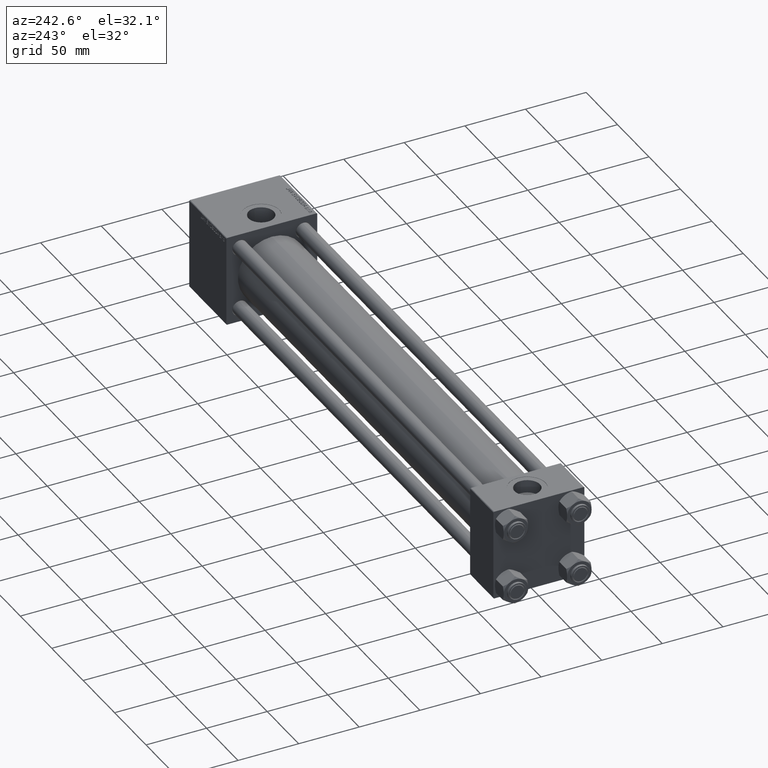
[diagram: clean part render]
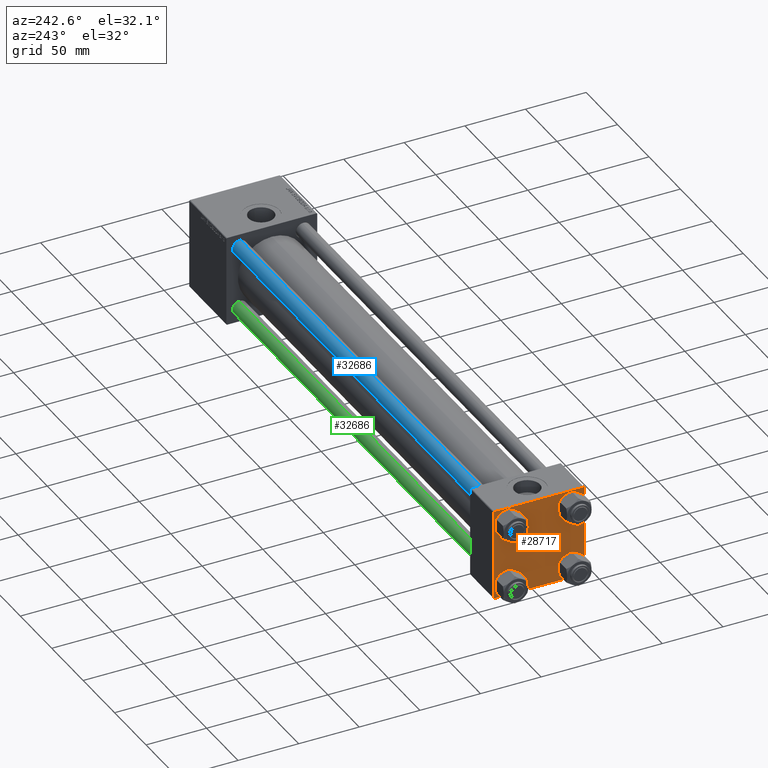
[diagram: same view with three faces highlighted in distinct colors, each labeled with its STEP entity id]
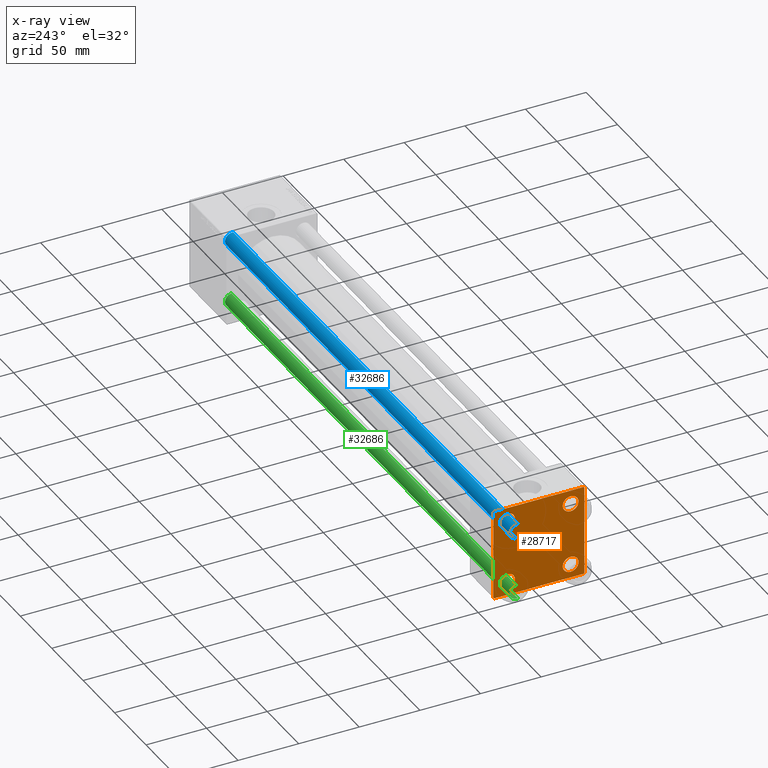
[diagram: x-ray of the same camera — body ghosted, the three highlighted faces saturated]
A machine part, auxiliary view with three faces highlighted in distinct colors.
The next image is the same camera in x-ray (body ghosted, the three faces saturated) — at least one of them is partly hidden behind the body in this view.
Their STEP definitions:

[orange] entity #28717 — the highlighted planar face has unit normal (-1, 0, 0).
#230 = CARTESIAN_POINT ( 'NONE',  ( 0.000000000000000000, 26.14999999999999858, 32.65000000000002700 ) ) ;
#609 = VECTOR ( 'NONE', #2418, 1000.000000000000000 ) ;
#1138 = CARTESIAN_POINT ( 'NONE',  ( 0.000000000000000000, -37.24999999999975842, -37.25000000000027001 ) ) ;
#2242 = CARTESIAN_POINT ( 'NONE',  ( 0.000000000000000000, 36.99999999999999289, 37.50000000000000000 ) ) ;
#2275 = DIRECTION ( 'NONE',  ( -0.000000000000000000, 0.7071067811865474617, 0.7071067811865474617 ) ) ;
#2418 = DIRECTION ( 'NONE',  ( 0.000000000000000000, 0.000000000000000000, -1.000000000000000000 ) ) ;
#2695 = VERTEX_POINT ( 'NONE', #26006 ) ;
#2727 = CARTESIAN_POINT ( 'NONE',  ( 0.000000000000000000, -26.14999999999999147, -32.65000000000002700 ) ) ;
#2827 = EDGE_LOOP ( 'NONE', ( #47886, #30783 ) ) ;
#2916 = VECTOR ( 'NONE', #2275, 1000.000000000000114 ) ;
#3047 = AXIS2_PLACEMENT_3D ( 'NONE', #18159, #25791, #22466 ) ;
#3140 = EDGE_LOOP ( 'NONE', ( #49891, #39124, #27170, #49041, #5658, #42458, #9182, #16251 ) ) ;
#3407 = FACE_BOUND ( 'NONE', #18278, .T. ) ;
#3740 = EDGE_CURVE ( 'NONE', #9069, #47236, #15443, .T. ) ;
#4159 = DIRECTION ( 'NONE',  ( 0.000000000000000000, 0.000000000000000000, 1.000000000000000000 ) ) ;
#4335 = DIRECTION ( 'NONE',  ( 0.000000000000000000, -1.000000000000000000, -9.251858538542971581E-17 ) ) ;
#4529 = DIRECTION ( 'NONE',  ( 0.000000000000000000, 0.000000000000000000, 1.000000000000000000 ) ) ;
#4978 = VERTEX_POINT ( 'NONE', #43006 ) ;
#4986 = DIRECTION ( 'NONE',  ( 1.000000000000000000, -0.000000000000000000, 0.000000000000000000 ) ) ;
#5388 = VECTOR ( 'NONE', #4335, 1000.000000000000000 ) ;
#5536 = DIRECTION ( 'NONE',  ( 1.000000000000000000, -0.000000000000000000, 0.000000000000000000 ) ) ;
#5575 = EDGE_CURVE ( 'NONE', #26894, #17867, #35426, .T. ) ;
#5658 = ORIENTED_EDGE ( 'NONE', *, *, #40076, .F. ) ;
#6331 = CARTESIAN_POINT ( 'NONE',  ( 0.000000000000000000, -37.50000000000000000, -37.00000000000003553 ) ) ;
#6379 = LINE ( 'NONE', #37347, #14908 ) ;
#6725 = FACE_OUTER_BOUND ( 'NONE', #3140, .T. ) ;
#6980 = FACE_BOUND ( 'NONE', #37662, .T. ) ;
#7075 = DIRECTION ( 'NONE',  ( 1.000000000000000000, -0.000000000000000000, 0.000000000000000000 ) ) ;
#7458 = CARTESIAN_POINT ( 'NONE',  ( 0.000000000000000000, -26.14999999999999147, 32.65000000000003411 ) ) ;
#7990 = CARTESIAN_POINT ( 'NONE',  ( 0.000000000000000000, -26.14999999999999147, -26.15000000000000924 ) ) ;
#8227 = DIRECTION ( 'NONE',  ( 1.000000000000000000, -0.000000000000000000, 0.000000000000000000 ) ) ;
#8339 = CIRCLE ( 'NONE', #43192, 6.500000000000015987 ) ;
#8391 = EDGE_LOOP ( 'NONE', ( #40736, #35788 ) ) ;
#8757 = LINE ( 'NONE', #20182, #22810 ) ;
#8976 = VERTEX_POINT ( 'NONE', #30466 ) ;
#9069 = VERTEX_POINT ( 'NONE', #230 ) ;
#9182 = ORIENTED_EDGE ( 'NONE', *, *, #23283, .F. ) ;
#9240 = DIRECTION ( 'NONE',  ( 1.000000000000000000, -0.000000000000000000, 0.000000000000000000 ) ) ;
#9299 = EDGE_CURVE ( 'NONE', #47236, #9069, #30242, .T. ) ;
#9387 = VERTEX_POINT ( 'NONE', #2242 ) ;
#9748 = EDGE_CURVE ( 'NONE', #22684, #15299, #8339, .T. ) ;
#11248 = DIRECTION ( 'NONE',  ( 1.000000000000000000, -0.000000000000000000, 0.000000000000000000 ) ) ;
#11392 = CARTESIAN_POINT ( 'NONE',  ( 0.000000000000000000, -37.00000000000000711, 37.49999999999999289 ) ) ;
#12587 = CARTESIAN_POINT ( 'NONE',  ( 0.000000000000000000, 26.14999999999999858, 19.64999999999998437 ) ) ;
#12644 = AXIS2_PLACEMENT_3D ( 'NONE', #22662, #11248, #23170 ) ;
#14447 = EDGE_CURVE ( 'NONE', #41483, #35845, #46455, .T. ) ;
#14659 = DIRECTION ( 'NONE',  ( 0.000000000000000000, 0.000000000000000000, 1.000000000000000000 ) ) ;
#14908 = VECTOR ( 'NONE', #45218, 1000.000000000000000 ) ;
#15285 = LINE ( 'NONE', #19834, #5388 ) ;
#15299 = VERTEX_POINT ( 'NONE', #20869 ) ;
#15443 = CIRCLE ( 'NONE', #44630, 6.500000000000023093 ) ;
#16041 = CARTESIAN_POINT ( 'NONE',  ( 0.000000000000000000, -37.50000000000000711, 36.99999999999999289 ) ) ;
#16200 = CARTESIAN_POINT ( 'NONE',  ( 0.000000000000000000, 26.14999999999999858, 26.15000000000000213 ) ) ;
#16251 = ORIENTED_EDGE ( 'NONE', *, *, #20124, .T. ) ;
#17332 = CIRCLE ( 'NONE', #38446, 6.500000000000015987 ) ;
#17357 = DIRECTION ( 'NONE',  ( 0.000000000000000000, 0.000000000000000000, 1.000000000000000000 ) ) ;
#17532 = DIRECTION ( 'NONE',  ( 0.000000000000000000, -1.000000000000000000, -9.251858538542972814E-17 ) ) ;
#17867 = VERTEX_POINT ( 'NONE', #6331 ) ;
#18159 = CARTESIAN_POINT ( 'NONE',  ( 0.000000000000000000, 0.000000000000000000, 0.000000000000000000 ) ) ;
#18264 = CARTESIAN_POINT ( 'NONE',  ( -0.000000000000000000, -37.25000000000000000, 37.25000000000000000 ) ) ;
#18278 = EDGE_LOOP ( 'NONE', ( #41314, #43701 ) ) ;
#19007 = CARTESIAN_POINT ( 'NONE',  ( 0.000000000000000000, 26.14999999999999858, -26.15000000000000213 ) ) ;
#19834 = CARTESIAN_POINT ( 'NONE',  ( 0.000000000000000000, 37.49999999999999289, 37.50000000000000000 ) ) ;
#20124 = EDGE_CURVE ( 'NONE', #9387, #2695, #40202, .T. ) ;
#20182 = CARTESIAN_POINT ( 'NONE',  ( 0.000000000000000000, 37.24999999999998579, -37.24999999999998579 ) ) ;
#20869 = CARTESIAN_POINT ( 'NONE',  ( 0.000000000000000000, -26.14999999999999147, -19.64999999999999503 ) ) ;
#21047 = EDGE_CURVE ( 'NONE', #35845, #41483, #41830, .T. ) ;
#22008 = VERTEX_POINT ( 'NONE', #16041 ) ;
#22053 = DIRECTION ( 'NONE',  ( 1.000000000000000000, -0.000000000000000000, 0.000000000000000000 ) ) ;
#22466 = DIRECTION ( 'NONE',  ( -0.000000000000000000, 0.000000000000000000, 1.000000000000000000 ) ) ;
#22662 = CARTESIAN_POINT ( 'NONE',  ( 0.000000000000000000, -26.14999999999999147, 26.15000000000000924 ) ) ;
#22684 = VERTEX_POINT ( 'NONE', #2727 ) ;
#22810 = VECTOR ( 'NONE', #48088, 1000.000000000000114 ) ;
#23170 = DIRECTION ( 'NONE',  ( 0.000000000000000000, 0.000000000000000000, 1.000000000000000000 ) ) ;
#23283 = EDGE_CURVE ( 'NONE', #9387, #35317, #15285, .T. ) ;
#23893 = CIRCLE ( 'NONE', #39299, 6.500000000000015987 ) ;
#24519 = CARTESIAN_POINT ( 'NONE',  ( 0.000000000000000000, 36.99999999999997868, -37.50000000000000000 ) ) ;
#24573 = AXIS2_PLACEMENT_3D ( 'NONE', #25884, #22053, #37542 ) ;
#25540 = LINE ( 'NONE', #37205, #609 ) ;
#25742 = VECTOR ( 'NONE', #17532, 1000.000000000000000 ) ;
#25791 = DIRECTION ( 'NONE',  ( -1.000000000000000000, 0.000000000000000000, -0.000000000000000000 ) ) ;
#25884 = CARTESIAN_POINT ( 'NONE',  ( 0.000000000000000000, -26.14999999999999147, 26.15000000000000924 ) ) ;
#26006 = CARTESIAN_POINT ( 'NONE',  ( 0.000000000000000000, 37.49999999999999289, 37.00000000000000000 ) ) ;
#26332 = CIRCLE ( 'NONE', #31965, 6.500000000000015987 ) ;
#26894 = VERTEX_POINT ( 'NONE', #50170 ) ;
#27170 = ORIENTED_EDGE ( 'NONE', *, *, #28376, .T. ) ;
#27705 = VERTEX_POINT ( 'NONE', #24519 ) ;
#28376 = EDGE_CURVE ( 'NONE', #27705, #26894, #36563, .T. ) ;
#28513 = CARTESIAN_POINT ( 'NONE',  ( 0.000000000000000000, 37.24999999999999289, 37.24999999999999289 ) ) ;
#28529 = CARTESIAN_POINT ( 'NONE',  ( 0.000000000000000000, 26.14999999999999858, -26.15000000000000213 ) ) ;
#28717 = ADVANCED_FACE ( 'NONE', ( #3407, #30086, #34142, #6980, #6725 ), #44820, .T. ) ;
#28840 = EDGE_CURVE ( 'NONE', #2695, #4978, #25540, .T. ) ;
#29957 = ORIENTED_EDGE ( 'NONE', *, *, #3740, .T. ) ;
#30086 = FACE_BOUND ( 'NONE', #2827, .T. ) ;
#30242 = CIRCLE ( 'NONE', #41584, 6.500000000000023093 ) ;
#30466 = CARTESIAN_POINT ( 'NONE',  ( 0.000000000000000000, 26.14999999999999858, -19.64999999999998792 ) ) ;
#30783 = ORIENTED_EDGE ( 'NONE', *, *, #9748, .T. ) ;
#31203 = DIRECTION ( 'NONE',  ( 1.000000000000000000, -0.000000000000000000, 0.000000000000000000 ) ) ;
#31965 = AXIS2_PLACEMENT_3D ( 'NONE', #19007, #7075, #34488 ) ;
#33278 = CARTESIAN_POINT ( 'NONE',  ( 0.000000000000000000, 37.49999999999999289, -37.50000000000000000 ) ) ;
#34142 = FACE_BOUND ( 'NONE', #8391, .T. ) ;
#34488 = DIRECTION ( 'NONE',  ( 0.000000000000000000, 0.000000000000000000, 1.000000000000000000 ) ) ;
#34825 = EDGE_CURVE ( 'NONE', #4978, #27705, #8757, .T. ) ;
#35317 = VERTEX_POINT ( 'NONE', #11392 ) ;
#35426 = LINE ( 'NONE', #1138, #43058 ) ;
#35788 = ORIENTED_EDGE ( 'NONE', *, *, #39733, .T. ) ;
#35845 = VERTEX_POINT ( 'NONE', #7458 ) ;
#35920 = DIRECTION ( 'NONE',  ( 0.000000000000000000, -0.7071067811865524577, 0.7071067811865426878 ) ) ;
#35959 = CARTESIAN_POINT ( 'NONE',  ( 0.000000000000000000, 26.14999999999999858, -32.65000000000001990 ) ) ;
#35975 = DIRECTION ( 'NONE',  ( 0.000000000000000000, 0.000000000000000000, 1.000000000000000000 ) ) ;
#36132 = VECTOR ( 'NONE', #36139, 1000.000000000000114 ) ;
#36139 = DIRECTION ( 'NONE',  ( 0.000000000000000000, 0.7071067811865474617, -0.7071067811865474617 ) ) ;
#36563 = LINE ( 'NONE', #33278, #25742 ) ;
#37205 = CARTESIAN_POINT ( 'NONE',  ( 0.000000000000000000, 37.49999999999999289, 37.50000000000000000 ) ) ;
#37347 = CARTESIAN_POINT ( 'NONE',  ( 0.000000000000000000, -37.50000000000000711, 37.49999999999999289 ) ) ;
#37542 = DIRECTION ( 'NONE',  ( 0.000000000000000000, 0.000000000000000000, 1.000000000000000000 ) ) ;
#37662 = EDGE_LOOP ( 'NONE', ( #29957, #44839 ) ) ;
#38446 = AXIS2_PLACEMENT_3D ( 'NONE', #28529, #9240, #17357 ) ;
#39124 = ORIENTED_EDGE ( 'NONE', *, *, #34825, .T. ) ;
#39242 = VERTEX_POINT ( 'NONE', #35959 ) ;
#39299 = AXIS2_PLACEMENT_3D ( 'NONE', #39786, #4986, #35975 ) ;
#39733 = EDGE_CURVE ( 'NONE', #39242, #8976, #17332, .T. ) ;
#39786 = CARTESIAN_POINT ( 'NONE',  ( 0.000000000000000000, -26.14999999999999147, -26.15000000000000924 ) ) ;
#40076 = EDGE_CURVE ( 'NONE', #22008, #17867, #6379, .T. ) ;
#40202 = LINE ( 'NONE', #28513, #36132 ) ;
#40736 = ORIENTED_EDGE ( 'NONE', *, *, #45453, .T. ) ;
#41314 = ORIENTED_EDGE ( 'NONE', *, *, #21047, .T. ) ;
#41483 = VERTEX_POINT ( 'NONE', #44800 ) ;
#41584 = AXIS2_PLACEMENT_3D ( 'NONE', #47676, #5536, #14659 ) ;
#41830 = CIRCLE ( 'NONE', #12644, 6.500000000000023093 ) ;
#42458 = ORIENTED_EDGE ( 'NONE', *, *, #48262, .T. ) ;
#43006 = CARTESIAN_POINT ( 'NONE',  ( 0.000000000000000000, 37.49999999999999289, -36.99999999999998579 ) ) ;
#43058 = VECTOR ( 'NONE', #35920, 1000.000000000000000 ) ;
#43192 = AXIS2_PLACEMENT_3D ( 'NONE', #7990, #8227, #4159 ) ;
#43701 = ORIENTED_EDGE ( 'NONE', *, *, #14447, .T. ) ;
#44630 = AXIS2_PLACEMENT_3D ( 'NONE', #16200, #31203, #4529 ) ;
#44800 = CARTESIAN_POINT ( 'NONE',  ( 0.000000000000000000, -26.14999999999999147, 19.64999999999999147 ) ) ;
#44820 = PLANE ( 'NONE',  #3047 ) ;
#44839 = ORIENTED_EDGE ( 'NONE', *, *, #9299, .T. ) ;
#45218 = DIRECTION ( 'NONE',  ( 0.000000000000000000, 9.251858538542971581E-17, -1.000000000000000000 ) ) ;
#45453 = EDGE_CURVE ( 'NONE', #8976, #39242, #26332, .T. ) ;
#45577 = EDGE_CURVE ( 'NONE', #15299, #22684, #23893, .T. ) ;
#46455 = CIRCLE ( 'NONE', #24573, 6.500000000000023093 ) ;
#47236 = VERTEX_POINT ( 'NONE', #12587 ) ;
#47676 = CARTESIAN_POINT ( 'NONE',  ( 0.000000000000000000, 26.14999999999999858, 26.15000000000000213 ) ) ;
#47886 = ORIENTED_EDGE ( 'NONE', *, *, #45577, .T. ) ;
#48088 = DIRECTION ( 'NONE',  ( -0.000000000000000000, -0.7071067811865474617, -0.7071067811865474617 ) ) ;
#48217 = LINE ( 'NONE', #18264, #2916 ) ;
#48262 = EDGE_CURVE ( 'NONE', #22008, #35317, #48217, .T. ) ;
#49041 = ORIENTED_EDGE ( 'NONE', *, *, #5575, .T. ) ;
#49891 = ORIENTED_EDGE ( 'NONE', *, *, #28840, .T. ) ;
#50170 = CARTESIAN_POINT ( 'NONE',  ( 0.000000000000000000, -37.00000000000002132, -37.50000000000000711 ) ) ;

[blue] entity #32686 — the highlighted cylindrical surface (edge-blend (fillet) strip) has radius 6 mm, axis along (-1, 0, 0).
#90 = AXIS2_PLACEMENT_3D ( 'NONE', #28168, #4799, #9639 ) ;
#666 = VERTEX_POINT ( 'NONE', #31153 ) ;
#2503 = ORIENTED_EDGE ( 'NONE', *, *, #50216, .T. ) ;
#3232 = ORIENTED_EDGE ( 'NONE', *, *, #32560, .T. ) ;
#4799 = DIRECTION ( 'NONE',  ( 0.000000000000000000, 0.000000000000000000, -1.000000000000000000 ) ) ;
#6168 = VECTOR ( 'NONE', #9996, 1000.000000000000000 ) ;
#9639 = DIRECTION ( 'NONE',  ( 1.000000000000000000, 0.000000000000000000, 0.000000000000000000 ) ) ;
#9996 = DIRECTION ( 'NONE',  ( -0.000000000000000000, -0.000000000000000000, -1.000000000000000000 ) ) ;
#10141 = ORIENTED_EDGE ( 'NONE', *, *, #20931, .F. ) ;
#11140 = CYLINDRICAL_SURFACE ( 'NONE', #36578, 6.000000000000000888 ) ;
#13552 = CARTESIAN_POINT ( 'NONE',  ( -6.000000000000000888, 0.000000000000000000, 454.0000000000000000 ) ) ;
#16146 = DIRECTION ( 'NONE',  ( -0.000000000000000000, -0.000000000000000000, 1.000000000000000000 ) ) ;
#17551 = VECTOR ( 'NONE', #49485, 1000.000000000000000 ) ;
#17850 = CARTESIAN_POINT ( 'NONE',  ( 6.000000000000000888, 7.347880794884119736E-16, 453.5000000000002842 ) ) ;
#19488 = DIRECTION ( 'NONE',  ( -0.000000000000000000, -0.000000000000000000, -1.000000000000000000 ) ) ;
#20830 = AXIS2_PLACEMENT_3D ( 'NONE', #43059, #16146, #39267 ) ;
#20931 = EDGE_CURVE ( 'NONE', #666, #37805, #32846, .T. ) ;
#26148 = LINE ( 'NONE', #41629, #17551 ) ;
#27121 = FACE_OUTER_BOUND ( 'NONE', #32529, .T. ) ;
#27548 = CARTESIAN_POINT ( 'NONE',  ( -6.000000000000000888, 0.000000000000000000, 0.5000000000004445333 ) ) ;
#27791 = EDGE_CURVE ( 'NONE', #35476, #37805, #42728, .T. ) ;
#28168 = CARTESIAN_POINT ( 'NONE',  ( 0.000000000000000000, 0.000000000000000000, 453.5000000000002842 ) ) ;
#30922 = DIRECTION ( 'NONE',  ( -1.000000000000000000, 0.000000000000000000, 0.000000000000000000 ) ) ;
#31153 = CARTESIAN_POINT ( 'NONE',  ( -6.000000000000000888, 0.000000000000000000, 453.5000000000002842 ) ) ;
#32529 = EDGE_LOOP ( 'NONE', ( #3232, #2503, #38521, #10141 ) ) ;
#32560 = EDGE_CURVE ( 'NONE', #666, #43109, #41443, .T. ) ;
#32686 = ADVANCED_FACE ( 'NONE', ( #27121 ), #11140, .T. ) ;
#32846 = LINE ( 'NONE', #13552, #6168 ) ;
#35476 = VERTEX_POINT ( 'NONE', #45604 ) ;
#36578 = AXIS2_PLACEMENT_3D ( 'NONE', #38805, #19488, #30922 ) ;
#37805 = VERTEX_POINT ( 'NONE', #27548 ) ;
#38521 = ORIENTED_EDGE ( 'NONE', *, *, #27791, .T. ) ;
#38805 = CARTESIAN_POINT ( 'NONE',  ( 0.000000000000000000, 0.000000000000000000, 454.0000000000000000 ) ) ;
#39267 = DIRECTION ( 'NONE',  ( 1.000000000000000000, 0.000000000000000000, 0.000000000000000000 ) ) ;
#41443 = CIRCLE ( 'NONE', #90, 6.000000000000000888 ) ;
#41629 = CARTESIAN_POINT ( 'NONE',  ( 6.000000000000000888, 7.347880794884119736E-16, 454.0000000000000000 ) ) ;
#42728 = CIRCLE ( 'NONE', #20830, 6.000000000000000888 ) ;
#43059 = CARTESIAN_POINT ( 'NONE',  ( 0.000000000000000000, 0.000000000000000000, 0.5000000000004445333 ) ) ;
#43109 = VERTEX_POINT ( 'NONE', #17850 ) ;
#45604 = CARTESIAN_POINT ( 'NONE',  ( 6.000000000000000888, 7.347880794884119736E-16, 0.5000000000004445333 ) ) ;
#49485 = DIRECTION ( 'NONE',  ( -0.000000000000000000, -0.000000000000000000, -1.000000000000000000 ) ) ;
#50216 = EDGE_CURVE ( 'NONE', #43109, #35476, #26148, .T. ) ;

[green] entity #32686 — the highlighted cylindrical surface (edge-blend (fillet) strip) has radius 6 mm, axis along (1, -0, 0).
#90 = AXIS2_PLACEMENT_3D ( 'NONE', #28168, #4799, #9639 ) ;
#666 = VERTEX_POINT ( 'NONE', #31153 ) ;
#2503 = ORIENTED_EDGE ( 'NONE', *, *, #50216, .T. ) ;
#3232 = ORIENTED_EDGE ( 'NONE', *, *, #32560, .T. ) ;
#4799 = DIRECTION ( 'NONE',  ( 0.000000000000000000, 0.000000000000000000, -1.000000000000000000 ) ) ;
#6168 = VECTOR ( 'NONE', #9996, 1000.000000000000000 ) ;
#9639 = DIRECTION ( 'NONE',  ( 1.000000000000000000, 0.000000000000000000, 0.000000000000000000 ) ) ;
#9996 = DIRECTION ( 'NONE',  ( -0.000000000000000000, -0.000000000000000000, -1.000000000000000000 ) ) ;
#10141 = ORIENTED_EDGE ( 'NONE', *, *, #20931, .F. ) ;
#11140 = CYLINDRICAL_SURFACE ( 'NONE', #36578, 6.000000000000000888 ) ;
#13552 = CARTESIAN_POINT ( 'NONE',  ( -6.000000000000000888, 0.000000000000000000, 454.0000000000000000 ) ) ;
#16146 = DIRECTION ( 'NONE',  ( -0.000000000000000000, -0.000000000000000000, 1.000000000000000000 ) ) ;
#17551 = VECTOR ( 'NONE', #49485, 1000.000000000000000 ) ;
#17850 = CARTESIAN_POINT ( 'NONE',  ( 6.000000000000000888, 7.347880794884119736E-16, 453.5000000000002842 ) ) ;
#19488 = DIRECTION ( 'NONE',  ( -0.000000000000000000, -0.000000000000000000, -1.000000000000000000 ) ) ;
#20830 = AXIS2_PLACEMENT_3D ( 'NONE', #43059, #16146, #39267 ) ;
#20931 = EDGE_CURVE ( 'NONE', #666, #37805, #32846, .T. ) ;
#26148 = LINE ( 'NONE', #41629, #17551 ) ;
#27121 = FACE_OUTER_BOUND ( 'NONE', #32529, .T. ) ;
#27548 = CARTESIAN_POINT ( 'NONE',  ( -6.000000000000000888, 0.000000000000000000, 0.5000000000004445333 ) ) ;
#27791 = EDGE_CURVE ( 'NONE', #35476, #37805, #42728, .T. ) ;
#28168 = CARTESIAN_POINT ( 'NONE',  ( 0.000000000000000000, 0.000000000000000000, 453.5000000000002842 ) ) ;
#30922 = DIRECTION ( 'NONE',  ( -1.000000000000000000, 0.000000000000000000, 0.000000000000000000 ) ) ;
#31153 = CARTESIAN_POINT ( 'NONE',  ( -6.000000000000000888, 0.000000000000000000, 453.5000000000002842 ) ) ;
#32529 = EDGE_LOOP ( 'NONE', ( #3232, #2503, #38521, #10141 ) ) ;
#32560 = EDGE_CURVE ( 'NONE', #666, #43109, #41443, .T. ) ;
#32686 = ADVANCED_FACE ( 'NONE', ( #27121 ), #11140, .T. ) ;
#32846 = LINE ( 'NONE', #13552, #6168 ) ;
#35476 = VERTEX_POINT ( 'NONE', #45604 ) ;
#36578 = AXIS2_PLACEMENT_3D ( 'NONE', #38805, #19488, #30922 ) ;
#37805 = VERTEX_POINT ( 'NONE', #27548 ) ;
#38521 = ORIENTED_EDGE ( 'NONE', *, *, #27791, .T. ) ;
#38805 = CARTESIAN_POINT ( 'NONE',  ( 0.000000000000000000, 0.000000000000000000, 454.0000000000000000 ) ) ;
#39267 = DIRECTION ( 'NONE',  ( 1.000000000000000000, 0.000000000000000000, 0.000000000000000000 ) ) ;
#41443 = CIRCLE ( 'NONE', #90, 6.000000000000000888 ) ;
#41629 = CARTESIAN_POINT ( 'NONE',  ( 6.000000000000000888, 7.347880794884119736E-16, 454.0000000000000000 ) ) ;
#42728 = CIRCLE ( 'NONE', #20830, 6.000000000000000888 ) ;
#43059 = CARTESIAN_POINT ( 'NONE',  ( 0.000000000000000000, 0.000000000000000000, 0.5000000000004445333 ) ) ;
#43109 = VERTEX_POINT ( 'NONE', #17850 ) ;
#45604 = CARTESIAN_POINT ( 'NONE',  ( 6.000000000000000888, 7.347880794884119736E-16, 0.5000000000004445333 ) ) ;
#49485 = DIRECTION ( 'NONE',  ( -0.000000000000000000, -0.000000000000000000, -1.000000000000000000 ) ) ;
#50216 = EDGE_CURVE ( 'NONE', #43109, #35476, #26148, .T. ) ;